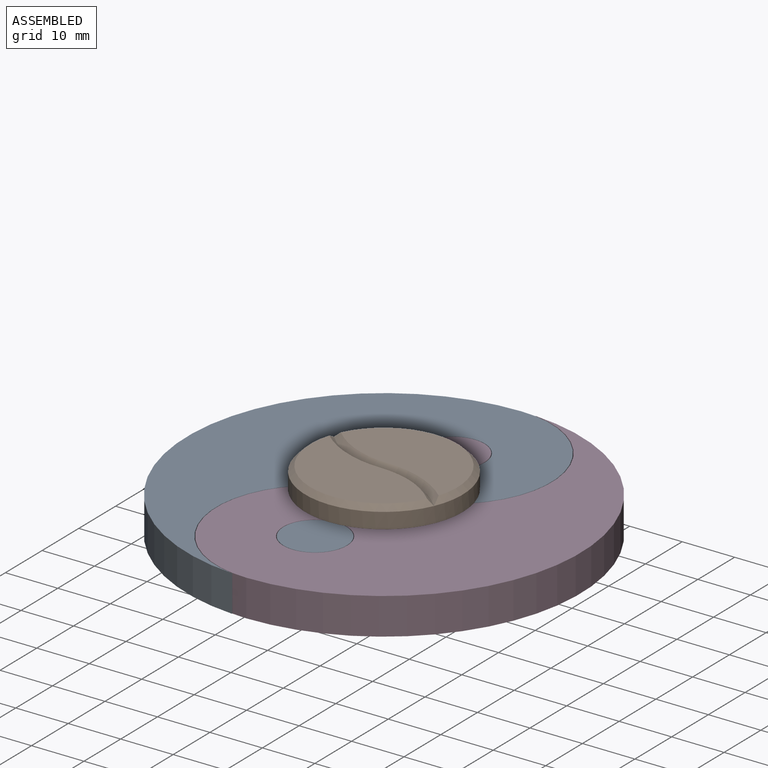
[diagram: assembled view]
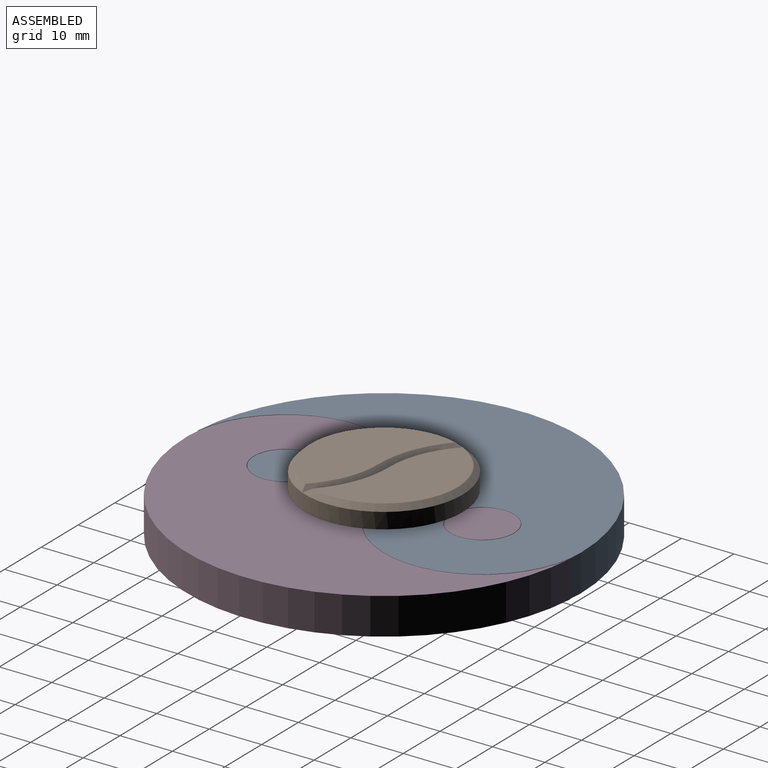
[diagram: assembled view, second angle]
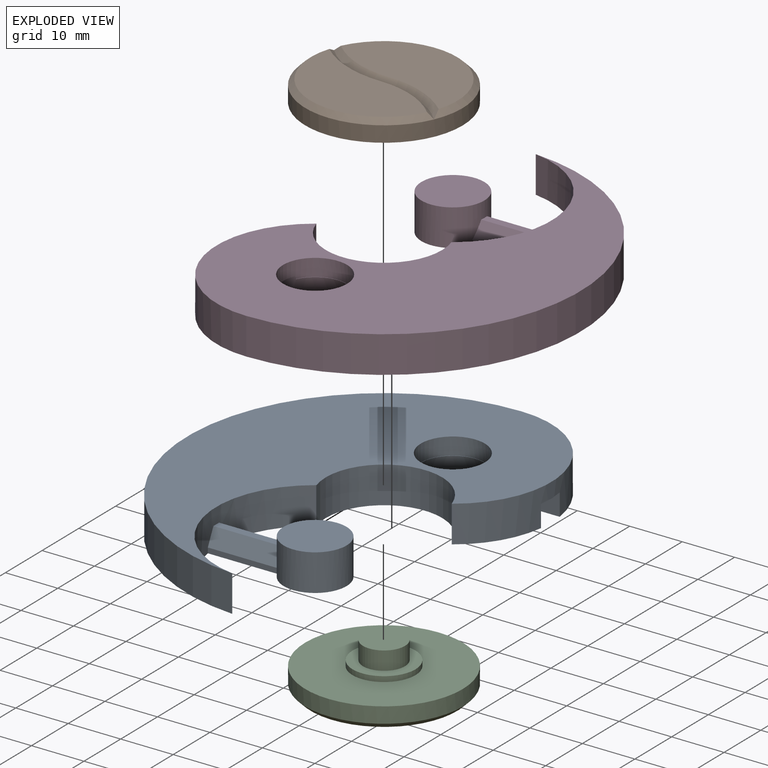
[diagram: exploded view]
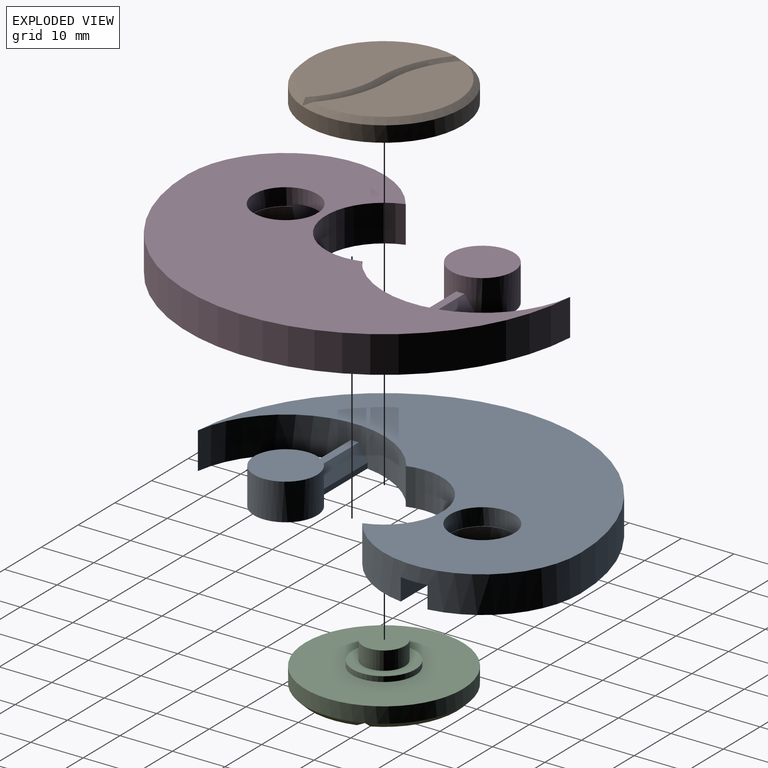
[diagram: exploded view, second angle]
ASSEMBLY  parts=4 mates=3
PART A: 28 faces, bbox 56.3x74.9x7 mm
  f0: plane 13.21x5.1mm, normal (0,0,-1), area 65.2mm2, adj f4,f11,f12,f27
  f1: plane 74.9x56.08mm, normal (0,0,-1), area 1974.4mm2, adj f3,f4,f5,f6,f8,f9,f11,f12
  f2: plane 74.9x56.25mm, normal (0,0,1), area 1893.9mm2, adj f3,f4,f5,f15,f18,f27
  f3: cylinder r=11.1mm len=21.7mm, axis (0,0,-1), area 244.1mm2, adj f1,f2,f4,f18
  f4: cylinder r=18.75mm len=34.21mm, axis (0,0,-1), area 312mm2, adj f0,f1,f2,f3,f5,f11,f12
  f5: cylinder r=37.5mm len=74.9mm, axis (0,0,-1), area 805.5mm2, adj f1,f2,f4,f15
  f6: cylinder r=6mm len=12mm, axis (0,0,-1), area 248.8mm2, adj f1,f7,f8,f9,f10,f13,f14
  f7: plane 12x12mm, normal (0,0,1), area 113.1mm2, adj f6
  f8: plane 13.13x1mm, normal (0,-1,0), area 13.1mm2, adj f1,f6,f14,f19
  f9: plane 13.13x1mm, normal (0,1,0), area 13.1mm2, adj f1,f6,f13,f17
  f10: plane 12.9x1.54mm, normal (0,0,1), area 19.8mm2, adj f6,f13,f14,f15,f16,f20
  f11: plane 13.14x4.2mm, normal (0,-1,0), area 53.2mm2, adj f0,f1,f4,f21,f23,f24
  f12: plane 13.14x4.2mm, normal (0,1,0), area 53.2mm2, adj f0,f1,f4,f21,f22,f25
  f13: plane 13.28x3mm, normal (0,0.87,0.5), area 44.8mm2, adj f6,f9,f10,f16
  f14: plane 13.28x3mm, normal (0,-0.87,0.5), area 44.8mm2, adj f6,f8,f10,f20
  f15: cylinder r=18.85mm len=34.2mm, axis (0,0,-1), area 301.1mm2, adj f1,f2,f5,f10,f16,f17,f18,f19
  f16: bspline ~3x1.75mm, area 0.3mm2, adj f10,f13,f15,f17
  f17: plane 1x0.1mm, normal (0.13,0.99,0), area 0.1mm2, adj f1,f9,f15,f16
  f18: plane 7x0.08mm, normal (-0.82,-0.57,0), area 0.7mm2, adj f1,f2,f3,f15
  f19: plane 1x0.1mm, normal (0.13,-0.99,0), area 0.1mm2, adj f1,f8,f15,f20
  f20: bspline ~3x1.75mm, area 0.3mm2, adj f10,f14,f15,f19
  f21: cone r=7mm half-angle=15deg, axis (0,0,-1), area 137.5mm2, adj f1,f11,f12,f26
  f22: plane 0.11x0.04mm, normal (0,0,1), area 0mm2, adj f12,f25,f27
  f23: plane 0.47x0.09mm, normal (-0.42,0.91,0), area 0mm2, adj f11,f24,f26,f27
  f24: plane 0.11x0.04mm, normal (0,0,1), area 0mm2, adj f11,f23,f27
  f25: plane 0.47x0.09mm, normal (-0.42,-0.91,0), area 0mm2, adj f12,f22,f26,f27
  f26: plane 12.2x11.62mm, normal (0,0,1), area 3.3mm2, adj f21,f23,f25,f27
  f27: cylinder r=6.1mm len=12.2mm, axis (0,0,-1), area 122.7mm2, adj f0,f2,f22,f23,f24,f25,f26
PART B: 14 faces, bbox 30x30x8.5 mm
  f0: plane 26.55x18.2mm, normal (0,0,1), area 279.2mm2, adj f9,f12,f13
  f1: cone r=15mm half-angle=45deg, axis (0,0,-1), area 62.9mm2, adj f2,f3,f10,f11
  f2: plane 26.55x18.2mm, normal (0,0,1), area 279.2mm2, adj f1,f10,f11
  f3: cylinder r=15mm len=30mm, axis (0,0,-1), area 282.7mm2, adj f1,f4,f9
  f4: plane 30x30mm, normal (0,0,-1), area 593.8mm2, adj f3,f5
  f5: cylinder r=6mm len=12mm, axis (0,0,-1), area 37.7mm2, adj f4,f6
  f6: plane 12x12mm, normal (0,0,-1), area 62.8mm2, adj f5,f7
  f7: cylinder r=4mm len=8mm, axis (0,0,-1), area 88mm2, adj f6,f8
  f8: plane 8x8mm, normal (0,0,-1), area 50.3mm2, adj f7
  f9: cone r=15mm half-angle=45deg, axis (0,0,-1), area 62.9mm2, adj f0,f3,f12,f13
  f10: cone r=18.75mm half-angle=45deg, axis (0,0,-1), area 20.8mm2, adj f1,f2,f11,f12
  f11: cone r=18.75mm half-angle=45deg, axis (0,0,1), area 21.3mm2, adj f1,f2,f10,f13
  f12: cone r=19.75mm half-angle=45deg, axis (0,0,1), area 21.3mm2, adj f0,f9,f10,f13
  f13: cone r=17.75mm half-angle=45deg, axis (0,0,-1), area 20.8mm2, adj f0,f9,f11,f12
PART C: same geometry as B
PART D: same geometry as A
PLACE A t=(35.07,15.88,19.33)mm
PLACE B t=(35.07,15.88,22.83)mm
PLACE C rot(axis=(1,0,0),180deg) t=(35.07,15.88,22.83)mm
PLACE D rot(axis=(0,0,1),180deg) t=(35.07,15.88,19.33)mm
MATE fastened D.f6 <-> A.f4  axis (0,0,1) through (35.07,34.63,26.33)mm
MATE fastened B.f1 <-> A.f3  axis (0,0,-1) through (35.07,15.88,26.33)mm
MATE fastened C.f1 <-> D.f3  axis (0,0,1) through (35.07,15.88,19.33)mm
